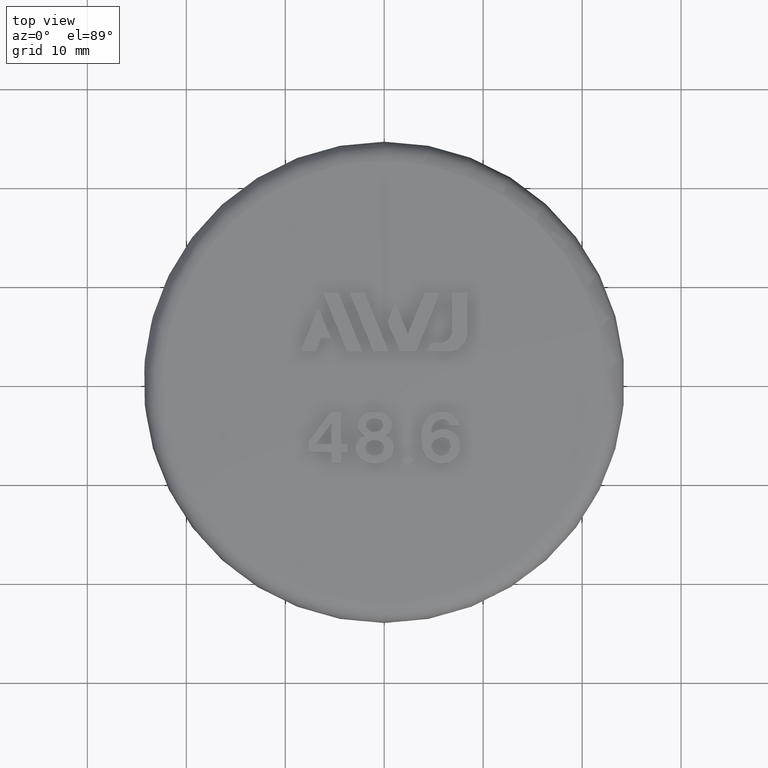
[diagram: clean part render]
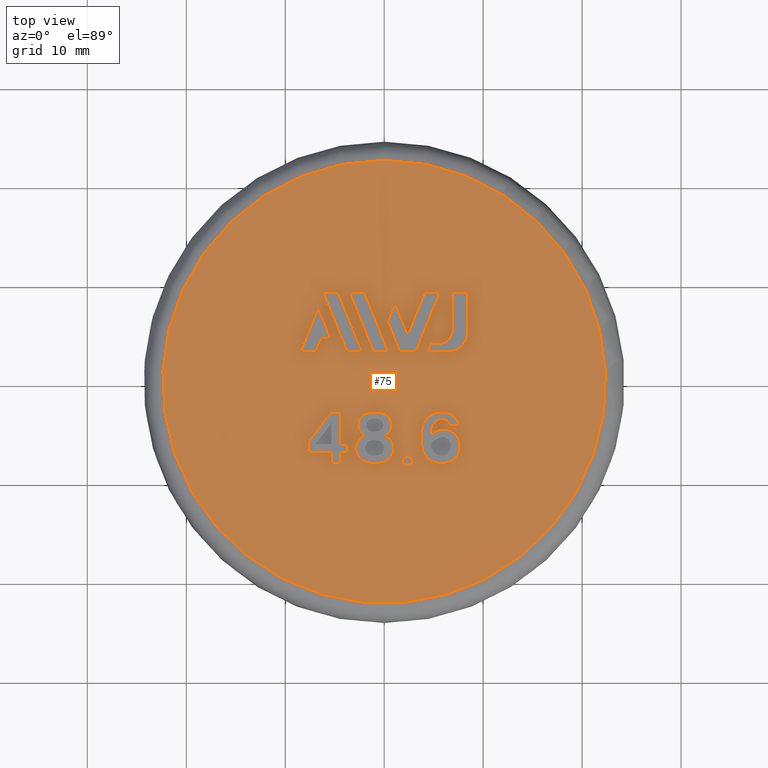
[diagram: same view with one face highlighted and labeled with its STEP entity id]
A machine part, top view. The second image highlights one B-rep face of the part: STEP entity #75.
In plain terms, the highlighted face is a freeform B-spline surface patch.
Its self-contained STEP definition (entity closure, byte-faithful):
#75 = ADVANCED_FACE( '', ( #213, #214, #215, #216, #217, #218, #219, #220, #221, #222, #223 ), #224, .T. );
#213 = FACE_BOUND( '', #524, .T. );
#214 = FACE_BOUND( '', #525, .T. );
#215 = FACE_BOUND( '', #526, .T. );
#216 = FACE_BOUND( '', #527, .T. );
#217 = FACE_BOUND( '', #528, .T. );
#218 = FACE_OUTER_BOUND( '', #529, .T. );
#219 = FACE_BOUND( '', #530, .T. );
#220 = FACE_BOUND( '', #531, .T. );
#221 = FACE_BOUND( '', #532, .T. );
#222 = FACE_BOUND( '', #533, .T. );
#223 = FACE_BOUND( '', #534, .T. );
#224 = ( B_SPLINE_SURFACE( 3, 3, ( ( #536, #537, #538, #539, #540, #541, #542 ), ( #543, #544, #545, #546, #547, #548, #549 ), ( #550, #551, #552, #553, #554, #555, #556 ), ( #557, #558, #559, #560, #561, #562, #563 ) ), .UNSPECIFIED., .F., .T., .F. )B_SPLINE_SURFACE_WITH_KNOTS( ( 4, 4 ), ( 4, 3, 4 ), ( 0.000000000000000, 6.28318530717959 ), ( -1.57232048147547, -1.55197153793293, -1.53162259439039 ), .UNSPECIFIED. )RATIONAL_B_SPLINE_SURFACE( ( ( 1.00000000000000, 0.333333333333333, 0.333333333333333, 1.00000000000000, 0.333333333333333, 0.333333333333333, 1.00000000000000 ), ( 0.999861978261664, 0.333287326087221, 0.333287326087221, 0.999861978261664, 0.333287326087221, 0.333287326087221, 0.999861978261664 ), ( 0.999861978261664, 0.333287326087221, 0.333287326087221, 0.999861978261664, 0.333287326087221, 0.333287326087221, 0.999861978261664 ), ( 1.00000000000000, 0.333333333333333, 0.333333333333333, 1.00000000000000, 0.333333333333333, 0.333333333333333, 1.00000000000000 ) ) )BOUNDED_SURFACE(  )REPRESENTATION_ITEM( '' )GEOMETRIC_REPRESENTATION_ITEM(  )SURFACE(  ) );
#524 = EDGE_LOOP( '', ( #1165, #1166, #1167 ) );
#525 = EDGE_LOOP( '', ( #1168, #1169 ) );
#526 = EDGE_LOOP( '', ( #1170, #1171, #1172, #1173, #1174 ) );
#527 = EDGE_LOOP( '', ( #1175, #1176, #1177, #1178 ) );
#528 = EDGE_LOOP( '', ( #1179, #1180, #1181, #1182, #1183, #1184, #1185, #1186 ) );
#529 = EDGE_LOOP( '', ( #1187 ) );
#530 = VERTEX_LOOP( '', #1188 );
#531 = EDGE_LOOP( '', ( #1189, #1190, #1191, #1192, #1193, #1194, #1195 ) );
#532 = EDGE_LOOP( '', ( #1196, #1197, #1198, #1199 ) );
#533 = EDGE_LOOP( '', ( #1200, #1201, #1202, #1203 ) );
#534 = EDGE_LOOP( '', ( #1204, #1205, #1206, #1207, #1208, #1209, #1210, #1211, #1212, #1213, #1214 ) );
#536 = CARTESIAN_POINT( '', ( 0.000000000000000, 22.3783274279206, 26.5786829421588 ) );
#537 = CARTESIAN_POINT( '', ( 44.7566548558411, 22.3783274279206, 26.5786829421588 ) );
#538 = CARTESIAN_POINT( '', ( 44.7566548558411, -22.3783274279206, 26.5786829421588 ) );
#539 = CARTESIAN_POINT( '', ( 0.000000000000000, -22.3783274279206, 26.5786829421588 ) );
#540 = CARTESIAN_POINT( '', ( -44.7566548558411, -22.3783274279206, 26.5786829421588 ) );
#541 = CARTESIAN_POINT( '', ( -44.7566548558411, 22.3783274279206, 26.5786829421588 ) );
#542 = CARTESIAN_POINT( '', ( 0.000000000000000, 22.3783274279206, 26.5786829421588 ) );
#543 = CARTESIAN_POINT( '', ( 0.000000000000000, 14.9222577885340, 26.8709145186687 ) );
#544 = CARTESIAN_POINT( '', ( 29.8445155770681, 14.9222577885340, 26.8709145186687 ) );
#545 = CARTESIAN_POINT( '', ( 29.8445155770681, -14.9222577885340, 26.8709145186687 ) );
#546 = CARTESIAN_POINT( '', ( 0.000000000000000, -14.9222577885340, 26.8709145186687 ) );
#547 = CARTESIAN_POINT( '', ( -29.8445155770681, -14.9222577885340, 26.8709145186687 ) );
#548 = CARTESIAN_POINT( '', ( -29.8445155770681, 14.9222577885340, 26.8709145186687 ) );
#549 = CARTESIAN_POINT( '', ( 0.000000000000000, 14.9222577885340, 26.8709145186687 ) );
#550 = CARTESIAN_POINT( '', ( 0.000000000000000, 7.46178560522077, 27.0113729242624 ) );
#551 = CARTESIAN_POINT( '', ( 14.9235712104416, 7.46178560522078, 27.0113729242624 ) );
#552 = CARTESIAN_POINT( '', ( 14.9235712104415, -7.46178560522077, 27.0113729242624 ) );
#553 = CARTESIAN_POINT( '', ( 0.000000000000000, -7.46178560522077, 27.0113729242624 ) );
#554 = CARTESIAN_POINT( '', ( -14.9235712104415, -7.46178560522077, 27.0113729242624 ) );
#555 = CARTESIAN_POINT( '', ( -14.9235712104416, 7.46178560522078, 27.0113729242624 ) );
#556 = CARTESIAN_POINT( '', ( 0.000000000000000, 7.46178560522077, 27.0113729242624 ) );
#557 = CARTESIAN_POINT( '', ( 0.000000000000000, -3.07804996768635E-013, 27.0000000000001 ) );
#558 = CARTESIAN_POINT( '', ( -6.16222296714181E-013, -3.07804996768635E-013, 27.0000000000001 ) );
#559 = CARTESIAN_POINT( '', ( -6.16222296714181E-013, 3.08417299945546E-013, 27.0000000000001 ) );
#560 = CARTESIAN_POINT( '', ( 0.000000000000000, 3.08417299945546E-013, 27.0000000000001 ) );
#561 = CARTESIAN_POINT( '', ( 6.16222296714181E-013, 3.08417299945546E-013, 27.0000000000001 ) );
#562 = CARTESIAN_POINT( '', ( 6.16222296714181E-013, -3.07804996768635E-013, 27.0000000000001 ) );
#563 = CARTESIAN_POINT( '', ( 0.000000000000000, -3.07804996768635E-013, 27.0000000000001 ) );
#1165 = ORIENTED_EDGE( '', *, *, #2273, .F. );
#1166 = ORIENTED_EDGE( '', *, *, #2274, .F. );
#1167 = ORIENTED_EDGE( '', *, *, #2275, .F. );
#1168 = ORIENTED_EDGE( '', *, *, #2276, .T. );
#1169 = ORIENTED_EDGE( '', *, *, #2277, .T. );
#1170 = ORIENTED_EDGE( '', *, *, #2278, .F. );
#1171 = ORIENTED_EDGE( '', *, *, #2279, .F. );
#1172 = ORIENTED_EDGE( '', *, *, #2280, .F. );
#1173 = ORIENTED_EDGE( '', *, *, #2281, .F. );
#1174 = ORIENTED_EDGE( '', *, *, #2282, .F. );
#1175 = ORIENTED_EDGE( '', *, *, #2283, .F. );
#1176 = ORIENTED_EDGE( '', *, *, #2284, .F. );
#1177 = ORIENTED_EDGE( '', *, *, #2285, .F. );
#1178 = ORIENTED_EDGE( '', *, *, #2286, .F. );
#1179 = ORIENTED_EDGE( '', *, *, #2287, .F. );
#1180 = ORIENTED_EDGE( '', *, *, #2288, .F. );
#1181 = ORIENTED_EDGE( '', *, *, #2289, .F. );
#1182 = ORIENTED_EDGE( '', *, *, #2290, .F. );
#1183 = ORIENTED_EDGE( '', *, *, #2291, .F. );
#1184 = ORIENTED_EDGE( '', *, *, #2292, .F. );
#1185 = ORIENTED_EDGE( '', *, *, #2293, .F. );
#1186 = ORIENTED_EDGE( '', *, *, #2294, .F. );
#1187 = ORIENTED_EDGE( '', *, *, #2295, .F. );
#1188 = VERTEX_POINT( '', #2296 );
#1189 = ORIENTED_EDGE( '', *, *, #2297, .F. );
#1190 = ORIENTED_EDGE( '', *, *, #2298, .F. );
#1191 = ORIENTED_EDGE( '', *, *, #2299, .F. );
#1192 = ORIENTED_EDGE( '', *, *, #2300, .F. );
#1193 = ORIENTED_EDGE( '', *, *, #2301, .F. );
#1194 = ORIENTED_EDGE( '', *, *, #2302, .F. );
#1195 = ORIENTED_EDGE( '', *, *, #2303, .F. );
#1196 = ORIENTED_EDGE( '', *, *, #2304, .F. );
#1197 = ORIENTED_EDGE( '', *, *, #2305, .F. );
#1198 = ORIENTED_EDGE( '', *, *, #2306, .F. );
#1199 = ORIENTED_EDGE( '', *, *, #2307, .F. );
#1200 = ORIENTED_EDGE( '', *, *, #2308, .F. );
#1201 = ORIENTED_EDGE( '', *, *, #2309, .F. );
#1202 = ORIENTED_EDGE( '', *, *, #2310, .F. );
#1203 = ORIENTED_EDGE( '', *, *, #2311, .F. );
#1204 = ORIENTED_EDGE( '', *, *, #2312, .F. );
#1205 = ORIENTED_EDGE( '', *, *, #2313, .F. );
#1206 = ORIENTED_EDGE( '', *, *, #2314, .F. );
#1207 = ORIENTED_EDGE( '', *, *, #2315, .F. );
#1208 = ORIENTED_EDGE( '', *, *, #2316, .F. );
#1209 = ORIENTED_EDGE( '', *, *, #2317, .F. );
#1210 = ORIENTED_EDGE( '', *, *, #2318, .F. );
#1211 = ORIENTED_EDGE( '', *, *, #2319, .F. );
#1212 = ORIENTED_EDGE( '', *, *, #2320, .F. );
#1213 = ORIENTED_EDGE( '', *, *, #2321, .F. );
#1214 = ORIENTED_EDGE( '', *, *, #2322, .F. );
#2273 = EDGE_CURVE( '', #2595, #2596, #2597, .T. );
#2274 = EDGE_CURVE( '', #2598, #2595, #2599, .T. );
#2275 = EDGE_CURVE( '', #2596, #2598, #2600, .T. );
#2276 = EDGE_CURVE( '', #2601, #2602, #2603, .T. );
#2277 = EDGE_CURVE( '', #2602, #2601, #2604, .T. );
#2278 = EDGE_CURVE( '', #2605, #2606, #2607, .T. );
#2279 = EDGE_CURVE( '', #2608, #2605, #2609, .T. );
#2280 = EDGE_CURVE( '', #2610, #2608, #2611, .T. );
#2281 = EDGE_CURVE( '', #2612, #2610, #2613, .T. );
#2282 = EDGE_CURVE( '', #2606, #2612, #2614, .T. );
#2283 = EDGE_CURVE( '', #2615, #2616, #2617, .T. );
#2284 = EDGE_CURVE( '', #2618, #2615, #2619, .T. );
#2285 = EDGE_CURVE( '', #2620, #2618, #2621, .T. );
#2286 = EDGE_CURVE( '', #2616, #2620, #2622, .T. );
#2287 = EDGE_CURVE( '', #2623, #2624, #2625, .T. );
#2288 = EDGE_CURVE( '', #2626, #2623, #2627, .T. );
#2289 = EDGE_CURVE( '', #2628, #2626, #2629, .T. );
#2290 = EDGE_CURVE( '', #2630, #2628, #2631, .T. );
#2291 = EDGE_CURVE( '', #2632, #2630, #2633, .T. );
#2292 = EDGE_CURVE( '', #2634, #2632, #2635, .T. );
#2293 = EDGE_CURVE( '', #2636, #2634, #2637, .T. );
#2294 = EDGE_CURVE( '', #2624, #2636, #2638, .T. );
#2295 = EDGE_CURVE( '', #2639, #2639, #2640, .T. );
#2296 = CARTESIAN_POINT( '', ( 3.25260651745651E-016, 3.06151588455602E-016, 27.0000000000001 ) );
#2297 = EDGE_CURVE( '', #2641, #2642, #2643, .T. );
#2298 = EDGE_CURVE( '', #2644, #2641, #2645, .T. );
#2299 = EDGE_CURVE( '', #2646, #2644, #2647, .T. );
#2300 = EDGE_CURVE( '', #2648, #2646, #2649, .T. );
#2301 = EDGE_CURVE( '', #2650, #2648, #2651, .T. );
#2302 = EDGE_CURVE( '', #2652, #2650, #2653, .T. );
#2303 = EDGE_CURVE( '', #2642, #2652, #2654, .T. );
#2304 = EDGE_CURVE( '', #2655, #2656, #2657, .T. );
#2305 = EDGE_CURVE( '', #2658, #2655, #2659, .T. );
#2306 = EDGE_CURVE( '', #2660, #2658, #2661, .T. );
#2307 = EDGE_CURVE( '', #2656, #2660, #2662, .T. );
#2308 = EDGE_CURVE( '', #2663, #2664, #2665, .T. );
#2309 = EDGE_CURVE( '', #2666, #2663, #2667, .T. );
#2310 = EDGE_CURVE( '', #2668, #2666, #2669, .T. );
#2311 = EDGE_CURVE( '', #2664, #2668, #2670, .T. );
#2312 = EDGE_CURVE( '', #2671, #2672, #2673, .T. );
#2313 = EDGE_CURVE( '', #2674, #2671, #2675, .T. );
#2314 = EDGE_CURVE( '', #2676, #2674, #2677, .T. );
#2315 = EDGE_CURVE( '', #2678, #2676, #2679, .T. );
#2316 = EDGE_CURVE( '', #2680, #2678, #2681, .T. );
#2317 = EDGE_CURVE( '', #2682, #2680, #2683, .T. );
#2318 = EDGE_CURVE( '', #2684, #2682, #2685, .T. );
#2319 = EDGE_CURVE( '', #2686, #2684, #2687, .T. );
#2320 = EDGE_CURVE( '', #2688, #2686, #2689, .T. );
#2321 = EDGE_CURVE( '', #2690, #2688, #2691, .T. );
#2322 = EDGE_CURVE( '', #2672, #2690, #2692, .T. );
#2595 = VERTEX_POINT( '', #3138 );
#2596 = VERTEX_POINT( '', #3139 );
#2597 = B_SPLINE_CURVE_WITH_KNOTS( '', 3, ( #3140, #3141, #3142, #3143, #3144, #3145, #3146, #3147 ), .UNSPECIFIED., .F., .F., ( 4, 2, 2, 4 ), ( 2.07181657327061E-007, 0.000253222256020334, 0.000506237330383341, 0.00101226747910936 ), .UNSPECIFIED. );
#2598 = VERTEX_POINT( '', #3148 );
#2599 = B_SPLINE_CURVE_WITH_KNOTS( '', 3, ( #3149, #3150, #3151, #3152, #3153, #3154, #3155, #3156, #3157, #3158, #3159, #3160, #3161, #3162, #3163, #3164, #3165, #3166, #3167, #3168, #3169, #3170, #3171, #3172, #3173, #3174, #3175, #3176, #3177, #3178, #3179, #3180, #3181, #3182, #3183, #3184, #3185, #3186, #3187, #3188, #3189, #3190, #3191, #3192 ), .UNSPECIFIED., .F., .F., ( 4, 2, 2, 2, 2, 2, 2, 2, 2, 2, 2, 2, 2, 2, 2, 2, 2, 2, 2, 2, 2, 4 ), ( 0.000000000000000, 0.000469921312048744, 0.000704881968073116, 0.000939842624097487, 0.00140976393614623, 0.00187968524819497, 0.00234960656024372, 0.00258456721626809, 0.00281952787229246, 0.00328944918434120, 0.00375937049638995, 0.00422929180843869, 0.00469921312048743, 0.00493417377651180, 0.00516913443253618, 0.00563905574458492, 0.00587401640060929, 0.00610897705663366, 0.00657889836868240, 0.00681385902470678, 0.00704881968073115, 0.00751874099277989 ), .UNSPECIFIED. );
#2600 = B_SPLINE_CURVE_WITH_KNOTS( '', 3, ( #3193, #3194, #3195, #3196, #3197, #3198, #3199, #3200, #3201, #3202, #3203, #3204, #3205, #3206, #3207, #3208, #3209, #3210, #3211, #3212, #3213, #3214, #3215, #3216, #3217, #3218, #3219, #3220, #3221, #3222, #3223, #3224, #3225, #3226, #3227, #3228, #3229, #3230 ), .UNSPECIFIED., .F., .F., ( 4, 2, 2, 2, 2, 2, 2, 2, 2, 2, 2, 2, 2, 2, 2, 2, 2, 2, 4 ), ( 0.000000000000000, 0.000483639529254431, 0.000967279058508862, 0.00145091858776329, 0.00193455811701772, 0.00241819764627216, 0.00290183717552659, 0.00338547670478102, 0.00386911623403545, 0.00435275576328988, 0.00483639529254431, 0.00507821505717152, 0.00532003482179874, 0.00580367435105316, 0.00628731388030759, 0.00677095340956201, 0.00701277317418922, 0.00725459293881644, 0.00773823246807086 ), .UNSPECIFIED. );
#2601 = VERTEX_POINT( '', #3231 );
#2602 = VERTEX_POINT( '', #3232 );
#2603 = B_SPLINE_CURVE_WITH_KNOTS( '', 3, ( #3233, #3234, #3235, #3236, #3237, #3238, #3239, #3240, #3241, #3242, #3243, #3244, #3245, #3246 ), .UNSPECIFIED., .F., .F., ( 4, 2, 2, 2, 2, 2, 4 ), ( 0.000000000000000, 0.000384540673760482, 0.000576811010640725, 0.000769081347520968, 0.000961351684401211, 0.00115362202128145, 0.00153816269504194 ), .UNSPECIFIED. );
#2604 = B_SPLINE_CURVE_WITH_KNOTS( '', 3, ( #3247, #3248, #3249, #3250, #3251, #3252, #3253, #3254, #3255, #3256, #3257, #3258, #3259, #3260 ), .UNSPECIFIED., .F., .F., ( 4, 2, 2, 2, 2, 2, 4 ), ( 0.000000000000000, 0.000384540841428157, 0.000576811262142236, 0.000769081682856314, 0.000961352103570393, 0.00115362252428447, 0.00153816336571263 ), .UNSPECIFIED. );
#2605 = VERTEX_POINT( '', #3261 );
#2606 = VERTEX_POINT( '', #3262 );
#2607 = B_SPLINE_CURVE_WITH_KNOTS( '', 3, ( #3263, #3264, #3265, #3266 ), .UNSPECIFIED., .F., .F., ( 4, 4 ), ( 2.15707224095742E-007, 0.00485097116852450 ), .UNSPECIFIED. );
#2608 = VERTEX_POINT( '', #3267 );
#2609 = B_SPLINE_CURVE_WITH_KNOTS( '', 3, ( #3268, #3269, #3270, #3271 ), .UNSPECIFIED., .F., .F., ( 4, 4 ), ( 2.15702240297657E-007, 0.00335683113711189 ), .UNSPECIFIED. );
#2610 = VERTEX_POINT( '', #3272 );
#2611 = B_SPLINE_CURVE_WITH_KNOTS( '', 3, ( #3273, #3274, #3275, #3276, #3277, #3278 ), .UNSPECIFIED., .F., .F., ( 4, 2, 4 ), ( 3.48924730777917, 3.48972925685257, 3.49021120592596 ), .UNSPECIFIED. );
#2612 = VERTEX_POINT( '', #3279 );
#2613 = B_SPLINE_CURVE_WITH_KNOTS( '', 3, ( #3280, #3281, #3282, #3283 ), .UNSPECIFIED., .F., .F., ( 4, 4 ), ( 2.15728885515555E-007, 0.00149462531016601 ), .UNSPECIFIED. );
#2614 = B_SPLINE_CURVE_WITH_KNOTS( '', 3, ( #3284, #3285, #3286, #3287, #3288, #3289 ), .UNSPECIFIED., .F., .F., ( 4, 2, 4 ), ( 3.48885935095678, 3.48963416434721, 3.49040897773765 ), .UNSPECIFIED. );
#2615 = VERTEX_POINT( '', #3290 );
#2616 = VERTEX_POINT( '', #3291 );
#2617 = B_SPLINE_CURVE_WITH_KNOTS( '', 3, ( #3292, #3293, #3294, #3295, #3296, #3297 ), .UNSPECIFIED., .F., .F., ( 4, 2, 4 ), ( 3.49021840634605, 3.49099348193459, 3.49176855752312 ), .UNSPECIFIED. );
#2618 = VERTEX_POINT( '', #3298 );
#2619 = B_SPLINE_CURVE_WITH_KNOTS( '', 3, ( #3299, #3300, #3301, #3302 ), .UNSPECIFIED., .F., .F., ( 4, 4 ), ( 2.15734235500972E-007, 0.00647035431853798 ), .UNSPECIFIED. );
#2620 = VERTEX_POINT( '', #3303 );
#2621 = B_SPLINE_CURVE_WITH_KNOTS( '', 3, ( #3304, #3305, #3306, #3307, #3308, #3309 ), .UNSPECIFIED., .F., .F., ( 4, 2, 4 ), ( 3.48757906835301, 3.48835408982577, 3.48912911129853 ), .UNSPECIFIED. );
#2622 = B_SPLINE_CURVE_WITH_KNOTS( '', 3, ( #3310, #3311, #3312, #3313 ), .UNSPECIFIED., .F., .F., ( 4, 4 ), ( 2.15710700075739E-007, 0.00647032361413973 ), .UNSPECIFIED. );
#2623 = VERTEX_POINT( '', #3314 );
#2624 = VERTEX_POINT( '', #3315 );
#2625 = B_SPLINE_CURVE_WITH_KNOTS( '', 3, ( #3316, #3317, #3318, #3319 ), .UNSPECIFIED., .F., .F., ( 4, 4 ), ( 2.15714484725743E-007, 0.000941060443650760 ), .UNSPECIFIED. );
#2626 = VERTEX_POINT( '', #3320 );
#2627 = B_SPLINE_CURVE_WITH_KNOTS( '', 3, ( #3321, #3322, #3323, #3324, #3325, #3326 ), .UNSPECIFIED., .F., .F., ( 4, 2, 4 ), ( 3.48941293045993, 3.48983894883303, 3.49026496720613 ), .UNSPECIFIED. );
#2628 = VERTEX_POINT( '', #3327 );
#2629 = B_SPLINE_CURVE_WITH_KNOTS( '', 3, ( #3328, #3329, #3330, #3331, #3332, #3333, #3334, #3335, #3336, #3337, #3338, #3339, #3340, #3341 ), .UNSPECIFIED., .F., .F., ( 4, 2, 2, 2, 2, 2, 4 ), ( 7.47037518297715E-005, 0.000335499492294978, 0.000596295232760185, 0.00111788671369060, 0.00163947819462101, 0.00190027393508622, 0.00216106967555143 ), .UNSPECIFIED. );
#2630 = VERTEX_POINT( '', #3342 );
#2631 = B_SPLINE_CURVE_WITH_KNOTS( '', 3, ( #3343, #3344, #3345, #3346, #3347, #3348 ), .UNSPECIFIED., .F., .F., ( 4, 2, 4 ), ( 3.48742462885483, 3.48932076488217, 3.49121690090951 ), .UNSPECIFIED. );
#2632 = VERTEX_POINT( '', #3349 );
#2633 = B_SPLINE_CURVE_WITH_KNOTS( '', 3, ( #3350, #3351, #3352, #3353, #3354, #3355 ), .UNSPECIFIED., .F., .F., ( 4, 2, 4 ), ( 3.49020368559472, 3.49098756105408, 3.49177143651345 ), .UNSPECIFIED. );
#2634 = VERTEX_POINT( '', #3356 );
#2635 = B_SPLINE_CURVE_WITH_KNOTS( '', 3, ( #3357, #3358, #3359, #3360, #3361, #3362 ), .UNSPECIFIED., .F., .F., ( 4, 2, 4 ), ( 3.48897371536219, 3.49097263290113, 3.49297155044007 ), .UNSPECIFIED. );
#2636 = VERTEX_POINT( '', #3363 );
#2637 = B_SPLINE_CURVE_WITH_KNOTS( '', 3, ( #3364, #3365, #3366, #3367, #3368, #3369, #3370, #3371, #3372, #3373, #3374, #3375, #3376, #3377 ), .UNSPECIFIED., .F., .F., ( 4, 2, 2, 2, 2, 2, 4 ), ( 0.000111963335148921, 0.000503160286832201, 0.000894357238515482, 0.00167675114188204, 0.00245914504524860, 0.00285034199693188, 0.00324153894861517 ), .UNSPECIFIED. );
#2638 = B_SPLINE_CURVE_WITH_KNOTS( '', 3, ( #3378, #3379, #3380, #3381, #3382, #3383 ), .UNSPECIFIED., .F., .F., ( 4, 2, 4 ), ( 3.48877582250319, 3.48982841434286, 3.49088100618253 ), .UNSPECIFIED. );
#2639 = VERTEX_POINT( '', #3384 );
#2640 = CIRCLE( '', #3385, 22.3783274279206 );
#2641 = VERTEX_POINT( '', #3386 );
#2642 = VERTEX_POINT( '', #3387 );
#2643 = B_SPLINE_CURVE_WITH_KNOTS( '', 3, ( #3388, #3389, #3390, #3391, #3392, #3393 ), .UNSPECIFIED., .F., .F., ( 4, 2, 4 ), ( 3.48930311435226, 3.49012245893948, 3.49094180352669 ), .UNSPECIFIED. );
#2644 = VERTEX_POINT( '', #3394 );
#2645 = B_SPLINE_CURVE_WITH_KNOTS( '', 3, ( #3395, #3396, #3397, #3398 ), .UNSPECIFIED., .F., .F., ( 4, 4 ), ( 2.15719344025709E-007, 0.00329648473570306 ), .UNSPECIFIED. );
#2646 = VERTEX_POINT( '', #3399 );
#2647 = B_SPLINE_CURVE_WITH_KNOTS( '', 3, ( #3400, #3401, #3402, #3403 ), .UNSPECIFIED., .F., .F., ( 4, 4 ), ( 2.15718751737160E-007, 0.00206962200371408 ), .UNSPECIFIED. );
#2648 = VERTEX_POINT( '', #3404 );
#2649 = B_SPLINE_CURVE_WITH_KNOTS( '', 3, ( #3405, #3406, #3407, #3408 ), .UNSPECIFIED., .F., .F., ( 4, 4 ), ( 2.15710646262840E-007, 0.00341457824004196 ), .UNSPECIFIED. );
#2650 = VERTEX_POINT( '', #3409 );
#2651 = B_SPLINE_CURVE_WITH_KNOTS( '', 3, ( #3410, #3411, #3412, #3413 ), .UNSPECIFIED., .F., .F., ( 4, 4 ), ( 2.15737808763589E-007, 0.00451909213445147 ), .UNSPECIFIED. );
#2652 = VERTEX_POINT( '', #3414 );
#2653 = B_SPLINE_CURVE_WITH_KNOTS( '', 3, ( #3415, #3416, #3417, #3418, #3419, #3420 ), .UNSPECIFIED., .F., .F., ( 4, 2, 4 ), ( 3.48857184489822, 3.48934683865274, 3.49012183240725 ), .UNSPECIFIED. );
#2654 = B_SPLINE_CURVE_WITH_KNOTS( '', 3, ( #3421, #3422, #3423, #3424 ), .UNSPECIFIED., .F., .F., ( 4, 4 ), ( 2.15707486427350E-007, 0.00647032904258706 ), .UNSPECIFIED. );
#2655 = VERTEX_POINT( '', #3425 );
#2656 = VERTEX_POINT( '', #3426 );
#2657 = B_SPLINE_CURVE_WITH_KNOTS( '', 3, ( #3427, #3428, #3429, #3430, #3431, #3432 ), .UNSPECIFIED., .F., .F., ( 4, 2, 4 ), ( 3.48921481809669, 3.48998983395548, 3.49076484981427 ), .UNSPECIFIED. );
#2658 = VERTEX_POINT( '', #3433 );
#2659 = B_SPLINE_CURVE_WITH_KNOTS( '', 3, ( #3434, #3435, #3436, #3437 ), .UNSPECIFIED., .F., .F., ( 4, 4 ), ( 2.15736830842373E-007, 0.00647036363177008 ), .UNSPECIFIED. );
#2660 = VERTEX_POINT( '', #3438 );
#2661 = B_SPLINE_CURVE_WITH_KNOTS( '', 3, ( #3439, #3440, #3441, #3442, #3443, #3444 ), .UNSPECIFIED., .F., .F., ( 4, 2, 4 ), ( 3.48801095695795, 3.48878578065105, 3.48956060434415 ), .UNSPECIFIED. );
#2662 = B_SPLINE_CURVE_WITH_KNOTS( '', 3, ( #3445, #3446, #3447, #3448 ), .UNSPECIFIED., .F., .F., ( 4, 4 ), ( 2.15711758507845E-007, 0.00647042740387109 ), .UNSPECIFIED. );
#2663 = VERTEX_POINT( '', #3449 );
#2664 = VERTEX_POINT( '', #3450 );
#2665 = B_SPLINE_CURVE_WITH_KNOTS( '', 3, ( #3451, #3452, #3453, #3454, #3455, #3456, #3457, #3458 ), .UNSPECIFIED., .F., .F., ( 4, 2, 2, 4 ), ( 1.99672169592652E-007, 0.000322304346920244, 0.000644409021670895, 0.00128861837117220 ), .UNSPECIFIED. );
#2666 = VERTEX_POINT( '', #3459 );
#2667 = B_SPLINE_CURVE_WITH_KNOTS( '', 3, ( #3460, #3461, #3462, #3463 ), .UNSPECIFIED., .F., .F., ( 4, 4 ), ( 2.00011514801445E-007, 0.000960264971362403 ), .UNSPECIFIED. );
#2668 = VERTEX_POINT( '', #3464 );
#2669 = B_SPLINE_CURVE_WITH_KNOTS( '', 3, ( #3465, #3466, #3467, #3468, #3469, #3470, #3471, #3472, #3473, #3474, #3475, #3476, #3477, #3478, #3479, #3480, #3481, #3482, #3483, #3484 ), .UNSPECIFIED., .F., .F., ( 4, 2, 2, 2, 2, 2, 2, 2, 2, 4 ), ( 0.000000000000000, 0.000383167815667169, 0.000766335631334338, 0.000957919539167923, 0.00114950344700151, 0.00153267126266868, 0.00191583907833585, 0.00229900689400302, 0.00268217470967019, 0.00306534252533736 ), .UNSPECIFIED. );
#2670 = B_SPLINE_CURVE_WITH_KNOTS( '', 3, ( #3485, #3486, #3487, #3488, #3489, #3490, #3491, #3492, #3493, #3494, #3495, #3496, #3497, #3498, #3499, #3500, #3501, #3502, #3503, #3504, #3505, #3506, #3507, #3508, #3509, #3510, #3511, #3512, #3513, #3514, #3515, #3516, #3517, #3518, #3519, #3520, #3521, #3522, #3523, #3524, #3525, #3526, #3527, #3528, #3529, #3530, #3531, #3532, #3533, #3534, #3535, #3536, #3537, #3538, #3539, #3540, #3541, #3542, #3543, #3544 ), .UNSPECIFIED., .F., .F., ( 4, 2, 2, 2, 2, 2, 2, 2, 2, 2, 2, 2, 2, 2, 2, 2, 2, 2, 2, 2, 2, 2, 2, 2, 2, 2, 2, 2, 2, 4 ), ( 0.000000000000000, 0.000485381128479845, 0.000970762256959691, 0.00145614338543954, 0.00194152451391938, 0.00242690564239923, 0.00291228677087907, 0.00339766789935892, 0.00388304902783876, 0.00485381128479845, 0.00582457354175814, 0.00630995467023799, 0.00679533579871783, 0.00728071692719768, 0.00776609805567752, 0.00873686031263721, 0.00922224144111706, 0.00970762256959690, 0.0101930036980767, 0.0106783848265566, 0.0111637659550364, 0.0116491470835163, 0.0121345282119961, 0.0126199093404760, 0.0131052904689558, 0.0133479810331957, 0.0135906715974357, 0.0140760527259155, 0.0145614338543953, 0.0155321961113550 ), .UNSPECIFIED. );
#2671 = VERTEX_POINT( '', #3545 );
#2672 = VERTEX_POINT( '', #3546 );
#2673 = B_SPLINE_CURVE_WITH_KNOTS( '', 3, ( #3547, #3548, #3549, #3550, #3551, #3552 ), .UNSPECIFIED., .F., .F., ( 4, 2, 4 ), ( 3.48802634203030, 3.48850633175481, 3.48898632147931 ), .UNSPECIFIED. );
#2674 = VERTEX_POINT( '', #3553 );
#2675 = B_SPLINE_CURVE_WITH_KNOTS( '', 3, ( #3554, #3555, #3556, #3557, #3558, #3559 ), .UNSPECIFIED., .F., .F., ( 4, 2, 4 ), ( 3.48862687632254, 3.48918937647819, 3.48975187663383 ), .UNSPECIFIED. );
#2676 = VERTEX_POINT( '', #3560 );
#2677 = B_SPLINE_CURVE_WITH_KNOTS( '', 3, ( #3561, #3562, #3563, #3564, #3565, #3566 ), .UNSPECIFIED., .F., .F., ( 4, 2, 4 ), ( 3.48804955010725, 3.48920451977289, 3.49035948943853 ), .UNSPECIFIED. );
#2678 = VERTEX_POINT( '', #3567 );
#2679 = B_SPLINE_CURVE_WITH_KNOTS( '', 3, ( #3568, #3569, #3570, #3571, #3572, #3573 ), .UNSPECIFIED., .F., .F., ( 4, 2, 4 ), ( 3.48865077186893, 3.48918825170166, 3.48972573153440 ), .UNSPECIFIED. );
#2680 = VERTEX_POINT( '', #3574 );
#2681 = B_SPLINE_CURVE_WITH_KNOTS( '', 3, ( #3575, #3576, #3577, #3578 ), .UNSPECIFIED., .F., .F., ( 4, 4 ), ( 2.51542579329114E-007, 0.00371065767356432 ), .UNSPECIFIED. );
#2682 = VERTEX_POINT( '', #3579 );
#2683 = B_SPLINE_CURVE_WITH_KNOTS( '', 3, ( #3580, #3581, #3582, #3583, #3584, #3585 ), .UNSPECIFIED., .F., .F., ( 4, 2, 4 ), ( 3.48937847907777, 3.48988848059067, 3.49039848210357 ), .UNSPECIFIED. );
#2684 = VERTEX_POINT( '', #3586 );
#2685 = B_SPLINE_CURVE_WITH_KNOTS( '', 3, ( #3587, #3588, #3589, #3590, #3591, #3592 ), .UNSPECIFIED., .F., .F., ( 4, 2, 4 ), ( 3.48819542544959, 3.48980792544660, 3.49142042544361 ), .UNSPECIFIED. );
#2686 = VERTEX_POINT( '', #3593 );
#2687 = B_SPLINE_CURVE_WITH_KNOTS( '', 3, ( #3594, #3595, #3596, #3597, #3598, #3599 ), .UNSPECIFIED., .F., .F., ( 4, 2, 4 ), ( 3.48880921787067, 3.48915421318325, 3.48949920849583 ), .UNSPECIFIED. );
#2688 = VERTEX_POINT( '', #3600 );
#2689 = B_SPLINE_CURVE_WITH_KNOTS( '', 3, ( #3601, #3602, #3603, #3604, #3605, #3606 ), .UNSPECIFIED., .F., .F., ( 4, 2, 4 ), ( 3.48920441805609, 3.48960440926416, 3.49000440047222 ), .UNSPECIFIED. );
#2690 = VERTEX_POINT( '', #3607 );
#2691 = B_SPLINE_CURVE_WITH_KNOTS( '', 3, ( #3608, #3609, #3610, #3611, #3612, #3613 ), .UNSPECIFIED., .F., .F., ( 4, 2, 4 ), ( 3.48920285115470, 3.48954782935396, 3.48989280755321 ), .UNSPECIFIED. );
#2692 = B_SPLINE_CURVE_WITH_KNOTS( '', 3, ( #3614, #3615, #3616, #3617, #3618, #3619 ), .UNSPECIFIED., .F., .F., ( 4, 2, 4 ), ( 3.48922023890814, 3.48978272302238, 3.49034520713662 ), .UNSPECIFIED. );
#3138 = CARTESIAN_POINT( '', ( -1.99499942125367, -5.48474757722454, 26.9779290729095 ) );
#3139 = CARTESIAN_POINT( '', ( -2.74004626786406, -6.13718598267806, 26.9691767832430 ) );
#3140 = CARTESIAN_POINT( '', ( -1.99499942125367, -5.48474757722454, 26.9779290729096 ) );
#3141 = CARTESIAN_POINT( '', ( -2.07641093946223, -5.51103036932661, 26.9774517134462 ) );
#3142 = CARTESIAN_POINT( '', ( -2.15374851891121, -5.54512222948609, 26.9769023260141 ) );
#3143 = CARTESIAN_POINT( '', ( -2.30060350718073, -5.62829589691181, 26.9756633900312 ) );
#3144 = CARTESIAN_POINT( '', ( -2.37083524719646, -5.67808845586640, 26.9749645587062 ) );
#3145 = CARTESIAN_POINT( '', ( -2.56215473127759, -5.84554688381532, 26.9727206591132 ) );
#3146 = CARTESIAN_POINT( '', ( -2.66645675171775, -5.98272719427533, 26.9710063421147 ) );
#3147 = CARTESIAN_POINT( '', ( -2.74004626786446, -6.13718598267784, 26.9691767832431 ) );
#3148 = CARTESIAN_POINT( '', ( 0.135000407693182, -5.45974742295241, 26.9812081815175 ) );
#3149 = CARTESIAN_POINT( '', ( 0.135000407693182, -5.45974742295241, 26.9812081815175 ) );
#3150 = CARTESIAN_POINT( '', ( 0.275832056203116, -5.38752605169365, 26.9817858251701 ) );
#3151 = CARTESIAN_POINT( '', ( 0.406111471321799, -5.29698148039874, 26.9824602531459 ) );
#3152 = CARTESIAN_POINT( '', ( 0.565939277799995, -5.12235897532929, 26.9837152526834 ) );
#3153 = CARTESIAN_POINT( '', ( 0.611941910558827, -5.05905639127479, 26.9841642947072 ) );
#3154 = CARTESIAN_POINT( '', ( 0.687967287768902, -4.92125702867863, 26.9851314338259 ) );
#3155 = CARTESIAN_POINT( '', ( 0.718353900793505, -4.84713101330179, 26.9856457908626 ) );
#3156 = CARTESIAN_POINT( '', ( 0.789281780673163, -4.62177837155285, 26.9871826062670 ) );
#3157 = CARTESIAN_POINT( '', ( 0.806084773148826, -4.46130845596800, 26.9882474820799 ) );
#3158 = CARTESIAN_POINT( '', ( 0.775377523230451, -4.14878194555547, 26.9902609709513 ) );
#3159 = CARTESIAN_POINT( '', ( 0.730050971403753, -3.99473229039611, 26.9912198577315 ) );
#3160 = CARTESIAN_POINT( '', ( 0.582864890068512, -3.71543059006395, 26.9928959352510 ) );
#3161 = CARTESIAN_POINT( '', ( 0.482963477885169, -3.59134140437182, 26.9936063310581 ) );
#3162 = CARTESIAN_POINT( '', ( 0.309723317780409, -3.42838380604136, 26.9944792581313 ) );
#3163 = CARTESIAN_POINT( '', ( 0.249351039214242, -3.37803256792513, 26.9947370356939 ) );
#3164 = CARTESIAN_POINT( '', ( 0.119405478342578, -3.29123554552123, 26.9951638254766 ) );
#3165 = CARTESIAN_POINT( '', ( 0.0503306870774341, -3.25403638612315, 26.9953362526774 ) );
#3166 = CARTESIAN_POINT( '', ( -0.167568300300270, -3.15857138997813, 26.9957435081000 ) );
#3167 = CARTESIAN_POINT( '', ( -0.319716388921623, -3.11904620657789, 26.9958582287208 ) );
#3168 = CARTESIAN_POINT( '', ( -0.629678982856392, -3.06949011489006, 26.9958664846253 ) );
#3169 = CARTESIAN_POINT( '', ( -0.788242602359837, -3.05975045532275, 26.9957568681888 ) );
#3170 = CARTESIAN_POINT( '', ( -1.10162404906642, -3.05974493154479, 26.9953594195957 ) );
#3171 = CARTESIAN_POINT( '', ( -1.25781329038127, -3.06923264188947, 26.9950720238692 ) );
#3172 = CARTESIAN_POINT( '', ( -1.56858416727317, -3.11863331631673, 26.9942608919372 ) );
#3173 = CARTESIAN_POINT( '', ( -1.72308154006777, -3.15892193110672, 26.9937342618712 ) );
#3174 = CARTESIAN_POINT( '', ( -1.93923092873781, -3.25352245792889, 26.9927361988498 ) );
#3175 = CARTESIAN_POINT( '', ( -2.00981760606395, -3.29142266439707, 26.9923625741043 ) );
#3176 = CARTESIAN_POINT( '', ( -2.14086326187562, -3.37913336444693, 26.9915552173485 ) );
#3177 = CARTESIAN_POINT( '', ( -2.20097194311336, -3.42917491856421, 26.9911218552655 ) );
#3178 = CARTESIAN_POINT( '', ( -2.37021591694522, -3.59196181329739, 26.9897446787817 ) );
#3179 = CARTESIAN_POINT( '', ( -2.46660186148960, -3.72134418953089, 26.9887062384646 ) );
#3180 = CARTESIAN_POINT( '', ( -2.56371587286327, -3.93483511449894, 26.9871127916522 ) );
#3181 = CARTESIAN_POINT( '', ( -2.58814157703026, -4.01077984704039, 26.9865672324340 ) );
#3182 = CARTESIAN_POINT( '', ( -2.62784292604064, -4.16373804455528, 26.9854713374803 ) );
#3183 = CARTESIAN_POINT( '', ( -2.64251161356539, -4.24088359642633, 26.9849229293028 ) );
#3184 = CARTESIAN_POINT( '', ( -2.66687973009544, -4.47484598912683, 26.9832916030778 ) );
#3185 = CARTESIAN_POINT( '', ( -2.65527847211603, -4.63706763851526, 26.9822076159491 ) );
#3186 = CARTESIAN_POINT( '', ( -2.58307860318739, -4.86261845765223, 26.9808358025882 ) );
#3187 = CARTESIAN_POINT( '', ( -2.54942964891912, -4.93595989330232, 26.9804145860760 ) );
#3188 = CARTESIAN_POINT( '', ( -2.47041558594082, -5.07313445091700, 26.9796598613747 ) );
#3189 = CARTESIAN_POINT( '', ( -2.42438795699669, -5.13753977277410, 26.9793250134998 ) );
#3190 = CARTESIAN_POINT( '', ( -2.26526427245154, -5.31726133297704, 26.9784612351392 ) );
#3191 = CARTESIAN_POINT( '', ( -2.13718390039453, -5.41183247289029, 26.9781101055059 ) );
#3192 = CARTESIAN_POINT( '', ( -1.99499942125367, -5.48474757722454, 26.9779290729095 ) );
#3193 = CARTESIAN_POINT( '', ( -2.74004626786406, -6.13718598267806, 26.9691767832430 ) );
#3194 = CARTESIAN_POINT( '', ( -2.81214985581749, -6.28364639570846, 26.9674318269999 ) );
#3195 = CARTESIAN_POINT( '', ( -2.86115119409920, -6.43780419527801, 26.9656409493524 ) );
#3196 = CARTESIAN_POINT( '', ( -2.89952142668242, -6.76216036183254, 26.9620239915542 ) );
#3197 = CARTESIAN_POINT( '', ( -2.88758246911887, -6.92353416557907, 26.9602976042485 ) );
#3198 = CARTESIAN_POINT( '', ( -2.81000259796510, -7.24013663851024, 26.9570261526649 ) );
#3199 = CARTESIAN_POINT( '', ( -2.74476944476527, -7.38962732923592, 26.9555440924794 ) );
#3200 = CARTESIAN_POINT( '', ( -2.56059048408742, -7.65785514326842, 26.9530551737820 ) );
#3201 = CARTESIAN_POINT( '', ( -2.44506383052385, -7.77376830112613, 26.9520677378118 ) );
#3202 = CARTESIAN_POINT( '', ( -2.18803591220775, -7.97156071159091, 26.9504976076323 ) );
#3203 = CARTESIAN_POINT( '', ( -2.04899216908550, -8.05275213855676, 26.9499157321919 ) );
#3204 = CARTESIAN_POINT( '', ( -1.74824922248789, -8.17704218099386, 26.9492000521454 ) );
#3205 = CARTESIAN_POINT( '', ( -1.59148874100576, -8.21917237390732, 26.9490627018775 ) );
#3206 = CARTESIAN_POINT( '', ( -1.27415450350756, -8.27268657692647, 26.9490846420642 ) );
#3207 = CARTESIAN_POINT( '', ( -1.11140739430681, -8.28435989985501, 26.9492443983678 ) );
#3208 = CARTESIAN_POINT( '', ( -0.787812405740161, -8.28507004098868, 26.9497373651073 ) );
#3209 = CARTESIAN_POINT( '', ( -0.626917828565538, -8.27488999823097, 26.9500613127900 ) );
#3210 = CARTESIAN_POINT( '', ( -0.308026148274409, -8.22072464532417, 26.9510347796288 ) );
#3211 = CARTESIAN_POINT( '', ( -0.149655677038201, -8.17657593024861, 26.9516849595989 ) );
#3212 = CARTESIAN_POINT( '', ( 0.147307946742114, -8.05070484137612, 26.9533506862762 ) );
#3213 = CARTESIAN_POINT( '', ( 0.289626542999369, -7.96721304367020, 26.9543893092200 ) );
#3214 = CARTESIAN_POINT( '', ( 0.479664534218281, -7.81637751269197, 26.9561887429098 ) );
#3215 = CARTESIAN_POINT( '', ( 0.539161380644797, -7.76173608996450, 26.9568304566966 ) );
#3216 = CARTESIAN_POINT( '', ( 0.649067677460574, -7.64215297331248, 26.9582175903988 ) );
#3217 = CARTESIAN_POINT( '', ( 0.699509030075172, -7.57682270339251, 26.9589673120997 ) );
#3218 = CARTESIAN_POINT( '', ( 0.829334976716193, -7.37241371517442, 26.9612922182855 ) );
#3219 = CARTESIAN_POINT( '', ( 0.890214360643527, -7.21982379095588, 26.9630023242973 ) );
#3220 = CARTESIAN_POINT( '', ( 0.958962444629783, -6.90191106653212, 26.9665014852364 ) );
#3221 = CARTESIAN_POINT( '', ( 0.971696779784401, -6.73685912111131, 26.9682793442761 ) );
#3222 = CARTESIAN_POINT( '', ( 0.941770512584659, -6.41513649496742, 26.9716864097344 ) );
#3223 = CARTESIAN_POINT( '', ( 0.898399508424202, -6.25713300747932, 26.9733315130018 ) );
#3224 = CARTESIAN_POINT( '', ( 0.793791930930923, -6.03666321911338, 26.9755840981686 ) );
#3225 = CARTESIAN_POINT( '', ( 0.753288787597895, -5.96666923277774, 26.9762910140656 ) );
#3226 = CARTESIAN_POINT( '', ( 0.659573590823203, -5.83456737291572, 26.9776117865309 ) );
#3227 = CARTESIAN_POINT( '', ( 0.605477505701595, -5.77185793560453, 26.9782315904927 ) );
#3228 = CARTESIAN_POINT( '', ( 0.428230108416081, -5.60478587760476, 26.9798649319993 ) );
#3229 = CARTESIAN_POINT( '', ( 0.288005005759747, -5.51924921108940, 26.9806763704913 ) );
#3230 = CARTESIAN_POINT( '', ( 0.135000407693179, -5.45974742295241, 26.9812081815176 ) );
#3231 = CARTESIAN_POINT( '', ( 2.35500040769318, -8.43474742295240, 26.9436254970793 ) );
#3232 = CARTESIAN_POINT( '', ( 2.35500040769318, -7.53474742295240, 26.9553769878100 ) );
#3233 = CARTESIAN_POINT( '', ( 2.35500040769318, -8.43474742295240, 26.9436254970793 ) );
#3234 = CARTESIAN_POINT( '', ( 2.22513116395835, -8.43474742295241, 26.9441283960978 ) );
#3235 = CARTESIAN_POINT( '', ( 2.10012557741015, -8.38736593614556, 26.9452278921526 ) );
#3236 = CARTESIAN_POINT( '', ( 1.94490104106692, -8.27099207788847, 26.9473221244634 ) );
#3237 = CARTESIAN_POINT( '', ( 1.89759647729110, -8.22529641891363, 26.9480886298978 ) );
#3238 = CARTESIAN_POINT( '', ( 1.83197985769686, -8.11429310481245, 26.9497729261334 ) );
#3239 = CARTESIAN_POINT( '', ( 1.81502266401896, -8.04983699099973, 26.9506749424276 ) );
#3240 = CARTESIAN_POINT( '', ( 1.81497819920095, -7.91993735314902, 26.9523680428860 ) );
#3241 = CARTESIAN_POINT( '', ( 1.83196483624084, -7.85528121234008, 26.9531486162792 ) );
#3242 = CARTESIAN_POINT( '', ( 1.89744952407277, -7.74439310100237, 26.9543580927625 ) );
#3243 = CARTESIAN_POINT( '', ( 1.94496822542277, -7.69848286934717, 26.9547860997532 ) );
#3244 = CARTESIAN_POINT( '', ( 2.09930577332108, -7.58268278945919, 26.9557272472548 ) );
#3245 = CARTESIAN_POINT( '', ( 2.22511710580769, -7.53474742295240, 26.9558741093846 ) );
#3246 = CARTESIAN_POINT( '', ( 2.35500040769318, -7.53474742295240, 26.9553769878100 ) );
#3247 = CARTESIAN_POINT( '', ( 2.35500040769318, -7.53474742295240, 26.9553769878100 ) );
#3248 = CARTESIAN_POINT( '', ( 2.48486974290672, -7.53474742295241, 26.9548799196921 ) );
#3249 = CARTESIAN_POINT( '', ( 2.60987540862255, -7.58212905178851, 26.9537798507709 ) );
#3250 = CARTESIAN_POINT( '', ( 2.76509961000300, -7.69850263777941, 26.9516393662422 ) );
#3251 = CARTESIAN_POINT( '', ( 2.81240398298457, -7.74419805984324, 26.9508480116289 ) );
#3252 = CARTESIAN_POINT( '', ( 2.87802061259752, -7.85520092371333, 26.9491274627804 ) );
#3253 = CARTESIAN_POINT( '', ( 2.89497798671831, -7.91965688467186, 26.9482151963783 ) );
#3254 = CARTESIAN_POINT( '', ( 2.89502278012491, -8.04955639762272, 26.9465151376251 ) );
#3255 = CARTESIAN_POINT( '', ( 2.87803634593770, -8.11421274851581, 26.9457379871710 ) );
#3256 = CARTESIAN_POINT( '', ( 2.81255171535915, -8.22510129078774, 26.9445562886026 ) );
#3257 = CARTESIAN_POINT( '', ( 2.76503289640372, -8.27101171457689, 26.9441516673343 ) );
#3258 = CARTESIAN_POINT( '', ( 2.61069515181133, -8.38681203821748, 26.9432582448366 ) );
#3259 = CARTESIAN_POINT( '', ( 2.48488376256032, -8.43474742295240, 26.9431225434175 ) );
#3260 = CARTESIAN_POINT( '', ( 2.35500040769318, -8.43474742295240, 26.9436254970792 ) );
#3261 = CARTESIAN_POINT( '', ( -6.65884200000000, 7.50065000000000, 26.9238273490689 ) );
#3262 = CARTESIAN_POINT( '', ( -8.47575499999969, 3.00305199999999, 26.9401957993255 ) );
#3263 = CARTESIAN_POINT( '', ( -6.65884200000000, 7.50065000000000, 26.9238273490688 ) );
#3264 = CARTESIAN_POINT( '', ( -7.26447137220557, 6.00147119882843, 26.9358458593283 ) );
#3265 = CARTESIAN_POINT( '', ( -7.87010912186274, 4.50227166005989, 26.9412363494971 ) );
#3266 = CARTESIAN_POINT( '', ( -8.47575499999996, 3.00305200000010, 26.9401957993255 ) );
#3267 = CARTESIAN_POINT( '', ( -5.40203300000000, 4.38850099999999, 26.9665697979479 ) );
#3268 = CARTESIAN_POINT( '', ( -5.40203300000000, 4.38850099999999, 26.9665697979478 ) );
#3269 = CARTESIAN_POINT( '', ( -5.82098529322703, 5.42592352037835, 26.9556691478049 ) );
#3270 = CARTESIAN_POINT( '', ( -6.23992172460433, 6.46330676315784, 26.9414422249312 ) );
#3271 = CARTESIAN_POINT( '', ( -6.65884200000000, 7.50065000000000, 26.9238273490689 ) );
#3272 = CARTESIAN_POINT( '', ( -6.36596000000022, 4.38850099999999, 26.9574336749672 ) );
#3273 = CARTESIAN_POINT( '', ( -6.36596000000022, 4.38850099999999, 26.9574336749671 ) );
#3274 = CARTESIAN_POINT( '', ( -6.20530032063459, 4.38850099999999, 26.9590917492119 ) );
#3275 = CARTESIAN_POINT( '', ( -6.04461523012248, 4.38850099999999, 26.9606821119139 ) );
#3276 = CARTESIAN_POINT( '', ( -5.72332446491887, 4.38850099999999, 26.9637269943936 ) );
#3277 = CARTESIAN_POINT( '', ( -5.56267884850387, 4.38850099999999, 26.9651819099852 ) );
#3278 = CARTESIAN_POINT( '', ( -5.40203300000000, 4.38850099999999, 26.9665697979479 ) );
#3279 = CARTESIAN_POINT( '', ( -6.92612600000000, 3.00305199999999, 26.9596958567022 ) );
#3280 = CARTESIAN_POINT( '', ( -6.92612600000000, 3.00305199999999, 26.9596958567023 ) );
#3281 = CARTESIAN_POINT( '', ( -6.73940379467702, 3.46486884115515, 26.9595445637199 ) );
#3282 = CARTESIAN_POINT( '', ( -6.55268151948755, 3.92668585510991, 26.9587922533680 ) );
#3283 = CARTESIAN_POINT( '', ( -6.36596000000003, 4.38850099999991, 26.9574336749672 ) );
#3284 = CARTESIAN_POINT( '', ( -8.47575499999968, 3.00305199999999, 26.9401957993254 ) );
#3285 = CARTESIAN_POINT( '', ( -8.21748040114480, 3.00305199999999, 26.9438052786705 ) );
#3286 = CARTESIAN_POINT( '', ( -7.95915459598859, 3.00305199999999, 26.9472353150303 ) );
#3287 = CARTESIAN_POINT( '', ( -7.44264190093932, 3.00305199999999, 26.9537344790218 ) );
#3288 = CARTESIAN_POINT( '', ( -7.18438448326626, 3.00305199999999, 26.9568045442233 ) );
#3289 = CARTESIAN_POINT( '', ( -6.92612600000001, 3.00305199999999, 26.9596958567023 ) );
#3290 = CARTESIAN_POINT( '', ( -1.09588800000002, 3.00305199999999, 26.9955820707915 ) );
#3291 = CARTESIAN_POINT( '', ( 0.454192999999992, 3.00305199999999, 26.9962431393736 ) );
#3292 = CARTESIAN_POINT( '', ( -1.09588799999993, 3.00305199999999, 26.9955820707914 ) );
#3293 = CARTESIAN_POINT( '', ( -0.837560771336699, 3.00305199999999, 26.9959618219271 ) );
#3294 = CARTESIAN_POINT( '', ( -0.579242589818830, 3.00305199999999, 26.9962021772749 ) );
#3295 = CARTESIAN_POINT( '', ( -0.0625244696386694, 3.00305199999999, 26.9964199688565 ) );
#3296 = CARTESIAN_POINT( '', ( 0.195834374071608, 3.00305199999999, 26.9963976077359 ) );
#3297 = CARTESIAN_POINT( '', ( 0.454192999999992, 3.00305199999999, 26.9962431393735 ) );
#3298 = CARTESIAN_POINT( '', ( -3.51974200000002, 9.00165999999999, 26.9298010013287 ) );
#3299 = CARTESIAN_POINT( '', ( -3.51974200000002, 9.00165999999999, 26.9298010013287 ) );
#3300 = CARTESIAN_POINT( '', ( -2.71183898466474, 7.00224357846044, 26.9644128300986 ) );
#3301 = CARTESIAN_POINT( '', ( -1.90388764807062, 5.00270757039058, 26.9863389972077 ) );
#3302 = CARTESIAN_POINT( '', ( -1.09588800000002, 3.00305199999999, 26.9955820707916 ) );
#3303 = CARTESIAN_POINT( '', ( -1.96966100001091, 9.00165999999999, 26.9368504141705 ) );
#3304 = CARTESIAN_POINT( '', ( -1.96966100001091, 9.00165999999999, 26.9368504141706 ) );
#3305 = CARTESIAN_POINT( '', ( -2.22801091029424, 9.00165999999999, 26.9360092821584 ) );
#3306 = CARTESIAN_POINT( '', ( -2.48636044207613, 9.00166000000000, 26.9350019213936 ) );
#3307 = CARTESIAN_POINT( '', ( -3.00305874421581, 9.00165999999999, 26.9326528010566 ) );
#3308 = CARTESIAN_POINT( '', ( -3.26139998710461, 9.00165999999999, 26.9313110736772 ) );
#3309 = CARTESIAN_POINT( '', ( -3.51974200000002, 9.00165999999999, 26.9298010013286 ) );
#3310 = CARTESIAN_POINT( '', ( 0.454192999999992, 3.00305199999999, 26.9962431393735 ) );
#3311 = CARTESIAN_POINT( '', ( -0.353794328813451, 5.00267708241789, 26.9888214820774 ) );
#3312 = CARTESIAN_POINT( '', ( -1.16175983249976, 7.00224815152384, 26.9692309221050 ) );
#3313 = CARTESIAN_POINT( '', ( -1.96966100000154, 9.00166000000378, 26.9368504141705 ) );
#3314 = CARTESIAN_POINT( '', ( 4.67590900000001, 3.87536299999999, 26.9757261757844 ) );
#3315 = CARTESIAN_POINT( '', ( 4.32347200000031, 3.00305199999999, 26.9828314350845 ) );
#3316 = CARTESIAN_POINT( '', ( 4.67590900000001, 3.87536299999999, 26.9757261757844 ) );
#3317 = CARTESIAN_POINT( '', ( 4.55843077150751, 3.58459457621216, 26.9783531813319 ) );
#3318 = CARTESIAN_POINT( '', ( 4.44095168789556, 3.29382403593228, 26.9807201199084 ) );
#3319 = CARTESIAN_POINT( '', ( 4.32347200000004, 3.00305200000010, 26.9828314350846 ) );
#3320 = CARTESIAN_POINT( '', ( 5.52796599999985, 3.87536299999999, 26.9688552449162 ) );
#3321 = CARTESIAN_POINT( '', ( 5.52796599999986, 3.87536299999999, 26.9688552449165 ) );
#3322 = CARTESIAN_POINT( '', ( 5.38595340882207, 3.87536299999999, 26.9701054292456 ) );
#3323 = CARTESIAN_POINT( '', ( 5.24392305383002, 3.87536299999999, 26.9713029939667 ) );
#3324 = CARTESIAN_POINT( '', ( 4.95991625421839, 3.87536299999999, 26.9735929171628 ) );
#3325 = CARTESIAN_POINT( '', ( 4.81791270243328, 3.87536299999999, 26.9746855043200 ) );
#3326 = CARTESIAN_POINT( '', ( 4.67590900000001, 3.87536299999999, 26.9757261757845 ) );
#3327 = CARTESIAN_POINT( '', ( 6.86196599999997, 5.20936300001828, 26.9456519533467 ) );
#3328 = CARTESIAN_POINT( '', ( 6.86196599999998, 5.20936300001828, 26.9456519533467 ) );
#3329 = CARTESIAN_POINT( '', ( 6.86196600000118, 5.12188492871771, 26.9463999631703 ) );
#3330 = CARTESIAN_POINT( '', ( 6.85344364854832, 5.03536713031603, 26.9472163588832 ) );
#3331 = CARTESIAN_POINT( '', ( 6.81949721730562, 4.86423595934201, 26.9489837261781 ) );
#3332 = CARTESIAN_POINT( '', ( 6.79370523219583, 4.77919934688147, 26.9499415971281 ) );
#3333 = CARTESIAN_POINT( '', ( 6.69372891430530, 4.53789064973796, 26.9528972493534 ) );
#3334 = CARTESIAN_POINT( '', ( 6.59419348130502, 4.38903434370337, 26.9550560213172 ) );
#3335 = CARTESIAN_POINT( '', ( 6.34833589106194, 4.14316724495756, 26.9593370692019 ) );
#3336 = CARTESIAN_POINT( '', ( 6.19946199773290, 4.04361813800354, 26.9615034899183 ) );
#3337 = CARTESIAN_POINT( '', ( 5.95819879103496, 3.94364828685216, 26.9644845523083 ) );
#3338 = CARTESIAN_POINT( '', ( 5.87318449742311, 3.91785397027655, 26.9654536189447 ) );
#3339 = CARTESIAN_POINT( '', ( 5.70198937984130, 3.88388676555108, 26.9672508051311 ) );
#3340 = CARTESIAN_POINT( '', ( 5.61545143347352, 3.87536299999996, 26.9680850813904 ) );
#3341 = CARTESIAN_POINT( '', ( 5.52796599999985, 3.87536299999997, 26.9688552449164 ) );
#3342 = CARTESIAN_POINT( '', ( 6.86196600000000, 9.00165999999990, 26.9007731025492 ) );
#3343 = CARTESIAN_POINT( '', ( 6.86196600000000, 9.00165999999991, 26.9007731025493 ) );
#3344 = CARTESIAN_POINT( '', ( 6.86196600000000, 8.36964787463832, 26.9103526855448 ) );
#3345 = CARTESIAN_POINT( '', ( 6.86196600000000, 7.73746509165532, 26.9188737872706 ) );
#3346 = CARTESIAN_POINT( '', ( 6.86196600000000, 6.47341958696211, 26.9338201434819 ) );
#3347 = CARTESIAN_POINT( '', ( 6.86196600000000, 5.84139311361009, 26.9402475734061 ) );
#3348 = CARTESIAN_POINT( '', ( 6.86196600000000, 5.20936300001828, 26.9456519533467 ) );
#3349 = CARTESIAN_POINT( '', ( 8.42964599999971, 9.00165999999999, 26.8805208478101 ) );
#3350 = CARTESIAN_POINT( '', ( 8.42964599999971, 9.00165999999999, 26.8805208478100 ) );
#3351 = CARTESIAN_POINT( '', ( 8.16837884357173, 9.00166000000000, 26.8842538164802 ) );
#3352 = CARTESIAN_POINT( '', ( 7.90709986515138, 9.00165999999999, 26.8878074411028 ) );
#3353 = CARTESIAN_POINT( '', ( 7.38453371348970, 9.00165999999999, 26.8945576156698 ) );
#3354 = CARTESIAN_POINT( '', ( 7.12325011602554, 9.00165999999999, 26.8977541230807 ) );
#3355 = CARTESIAN_POINT( '', ( 6.86196600000000, 9.00165999999999, 26.9007731025493 ) );
#3356 = CARTESIAN_POINT( '', ( 8.42964600000001, 5.00405199999946, 26.9275733280919 ) );
#3357 = CARTESIAN_POINT( '', ( 8.42964600000001, 5.00405199999946, 26.9275733280919 ) );
#3358 = CARTESIAN_POINT( '', ( 8.42964600000001, 5.67032845010152, 26.9220290000019 ) );
#3359 = CARTESIAN_POINT( '', ( 8.42964600000001, 6.33659829475139, 26.9153499664400 ) );
#3360 = CARTESIAN_POINT( '', ( 8.42964600000001, 7.66912451861389, 26.8996787639138 ) );
#3361 = CARTESIAN_POINT( '', ( 8.42964600000001, 8.33541884561437, 26.8906860085573 ) );
#3362 = CARTESIAN_POINT( '', ( 8.42964600000001, 9.00165999999999, 26.8805208478100 ) );
#3363 = CARTESIAN_POINT( '', ( 6.42864599997250, 3.00305199999992, 26.9650445318722 ) );
#3364 = CARTESIAN_POINT( '', ( 6.42864599997251, 3.00305199999991, 26.9650445318722 ) );
#3365 = CARTESIAN_POINT( '', ( 6.55986277182213, 3.00305199999811, 26.9636919231295 ) );
#3366 = CARTESIAN_POINT( '', ( 6.68963842151194, 3.01583546412714, 26.9622470245381 ) );
#3367 = CARTESIAN_POINT( '', ( 6.94633172633829, 3.06675400373032, 26.9591721037706 ) );
#3368 = CARTESIAN_POINT( '', ( 7.07388596883269, 3.10544132745026, 26.9575308541230 ) );
#3369 = CARTESIAN_POINT( '', ( 7.43584754298981, 3.25540381783356, 26.9525323113017 ) );
#3370 = CARTESIAN_POINT( '', ( 7.65913047983634, 3.40470439988914, 26.9489662449596 ) );
#3371 = CARTESIAN_POINT( '', ( 8.02793182251249, 3.77348722762554, 26.9420445655785 ) );
#3372 = CARTESIAN_POINT( '', ( 8.17725751321900, 3.99679794181303, 26.9386177438294 ) );
#3373 = CARTESIAN_POINT( '', ( 8.32721441325404, 4.35869204565809, 26.9340266484234 ) );
#3374 = CARTESIAN_POINT( '', ( 8.36590680118566, 4.48621327242250, 26.9325568716117 ) );
#3375 = CARTESIAN_POINT( '', ( 8.41685980033791, 4.74301130636116, 26.9298812048507 ) );
#3376 = CARTESIAN_POINT( '', ( 8.42964600000000, 4.87282098683859, 26.9286653489677 ) );
#3377 = CARTESIAN_POINT( '', ( 8.42964600000004, 5.00405199999946, 26.9275733280919 ) );
#3378 = CARTESIAN_POINT( '', ( 4.32347200000031, 3.00305199999999, 26.9828314350845 ) );
#3379 = CARTESIAN_POINT( '', ( 4.67434572177801, 3.00305199999999, 26.9805124177737 ) );
#3380 = CARTESIAN_POINT( '', ( 5.02521817047733, 3.00305199999999, 26.9778746982486 ) );
#3381 = CARTESIAN_POINT( '', ( 5.72696046978947, 3.00305199999999, 26.9719488546864 ) );
#3382 = CARTESIAN_POINT( '', ( 6.07779836413606, 3.00305199999999, 26.9686611395124 ) );
#3383 = CARTESIAN_POINT( '', ( 6.42864599997251, 3.00305199999999, 26.9650445318722 ) );
#3384 = CARTESIAN_POINT( '', ( 0.000000000000000, 22.3783274279206, 26.5786829421586 ) );
#3385 = AXIS2_PLACEMENT_3D( '', #4982, #4983, #4984 );
#3386 = CARTESIAN_POINT( '', ( 1.56953200000001, 3.00305199999999, 26.9947265678179 ) );
#3387 = CARTESIAN_POINT( '', ( 3.20813300000000, 3.00305199999999, 26.9891426244929 ) );
#3388 = CARTESIAN_POINT( '', ( 1.56953199999998, 3.00305199999999, 26.9947265678180 ) );
#3389 = CARTESIAN_POINT( '', ( 1.84261911870118, 3.00305199999999, 26.9941400494776 ) );
#3390 = CARTESIAN_POINT( '', ( 2.11570596830306, 3.00305199999999, 26.9933894748430 ) );
#3391 = CARTESIAN_POINT( '', ( 2.66187908876783, 3.00305199999999, 26.9915354970221 ) );
#3392 = CARTESIAN_POINT( '', ( 2.93502069161894, 3.00305199999999, 26.9904318100712 ) );
#3393 = CARTESIAN_POINT( '', ( 3.20813300000000, 3.00305199999999, 26.9891426244929 ) );
#3394 = CARTESIAN_POINT( '', ( 0.334562999999982, 6.05917400000000, 26.9757708730690 ) );
#3395 = CARTESIAN_POINT( '', ( 0.334562999999982, 6.05917400000000, 26.9757708730689 ) );
#3396 = CARTESIAN_POINT( '', ( 0.746210892224030, 5.04048755549855, 26.9852277562585 ) );
#3397 = CARTESIAN_POINT( '', ( 1.15787071885009, 4.02177157747151, 26.9914244319303 ) );
#3398 = CARTESIAN_POINT( '', ( 1.56953200000001, 3.00305199999999, 26.9947265678180 ) );
#3399 = CARTESIAN_POINT( '', ( 1.10961399999998, 7.97782799999999, 26.9532953769751 ) );
#3400 = CARTESIAN_POINT( '', ( 1.10961399999998, 7.97782799999999, 26.9532953769752 ) );
#3401 = CARTESIAN_POINT( '', ( 0.851269352198850, 7.33829074131349, 26.9620742125094 ) );
#3402 = CARTESIAN_POINT( '', ( 0.592918107689370, 6.69873715234568, 26.9695625929909 ) );
#3403 = CARTESIAN_POINT( '', ( 0.334562999999983, 6.05917400000000, 26.9757708730690 ) );
#3404 = CARTESIAN_POINT( '', ( 2.38866200000001, 4.81221799999998, 26.9819488887536 ) );
#3405 = CARTESIAN_POINT( '', ( 2.38866200000001, 4.81221799999998, 26.9819488887537 ) );
#3406 = CARTESIAN_POINT( '', ( 1.96230222362484, 5.86744717958589, 26.9757193446250 ) );
#3407 = CARTESIAN_POINT( '', ( 1.53595266934032, 6.92265105976755, 26.9662384521452 ) );
#3408 = CARTESIAN_POINT( '', ( 1.10961399999998, 7.97782799999999, 26.9532953769752 ) );
#3409 = CARTESIAN_POINT( '', ( 4.08150499999999, 9.00165999999999, 26.9262515448171 ) );
#3410 = CARTESIAN_POINT( '', ( 4.08150499999999, 9.00165999999999, 26.9262515448172 ) );
#3411 = CARTESIAN_POINT( '', ( 3.51725256645205, 7.60525002949005, 26.9510031860013 ) );
#3412 = CARTESIAN_POINT( '', ( 2.95297155995014, 6.20876934673245, 26.9695675593697 ) );
#3413 = CARTESIAN_POINT( '', ( 2.38866200000001, 4.81221799999998, 26.9819488887536 ) );
#3414 = CARTESIAN_POINT( '', ( 5.63160699999950, 9.00165999999999, 26.9136814609053 ) );
#3415 = CARTESIAN_POINT( '', ( 5.63160699999950, 9.00165999999999, 26.9136814609054 ) );
#3416 = CARTESIAN_POINT( '', ( 5.37324769374143, 9.00165999999999, 26.9161184097148 ) );
#3417 = CARTESIAN_POINT( '', ( 5.11483348458545, 9.00166000000000, 26.9183840533154 ) );
#3418 = CARTESIAN_POINT( '', ( 4.59816913259691, 9.00165999999999, 26.9225729048876 ) );
#3419 = CARTESIAN_POINT( '', ( 4.33983702991350, 9.00165999999999, 26.9244968410419 ) );
#3420 = CARTESIAN_POINT( '', ( 4.08150499999999, 9.00165999999999, 26.9262515448171 ) );
#3421 = CARTESIAN_POINT( '', ( 3.20813300000000, 3.00305199999999, 26.9891426244929 ) );
#3422 = CARTESIAN_POINT( '', ( 4.01600636976762, 5.00270855042102, 26.9764934980225 ) );
#3423 = CARTESIAN_POINT( '', ( 4.82384347941608, 7.00227534941871, 26.9514451687400 ) );
#3424 = CARTESIAN_POINT( '', ( 5.63160699999992, 9.00165999999983, 26.9136814609054 ) );
#3425 = CARTESIAN_POINT( '', ( -3.76123700000000, 3.00305199999999, 26.9862763114953 ) );
#3426 = CARTESIAN_POINT( '', ( -2.21126699999999, 3.00305199999999, 26.9930403888178 ) );
#3427 = CARTESIAN_POINT( '', ( -3.76123699999982, 3.00305199999999, 26.9862763114953 ) );
#3428 = CARTESIAN_POINT( '', ( -3.50293119320244, 3.00305199999999, 26.9877351398181 ) );
#3429 = CARTESIAN_POINT( '', ( -3.24461732949516, 3.00305199999999, 26.9890241894801 ) );
#3430 = CARTESIAN_POINT( '', ( -2.72794246158545, 3.00305199999999, 26.9912742906609 ) );
#3431 = CARTESIAN_POINT( '', ( -2.46960482629717, 3.00305199999999, 26.9922352011445 ) );
#3432 = CARTESIAN_POINT( '', ( -2.21126699999999, 3.00305199999999, 26.9930403888178 ) );
#3433 = CARTESIAN_POINT( '', ( -6.18475100000002, 9.00165999999999, 26.9082011135987 ) );
#3434 = CARTESIAN_POINT( '', ( -6.18475100000002, 9.00165999999999, 26.9082011135988 ) );
#3435 = CARTESIAN_POINT( '', ( -5.37696986632871, 7.00226475380388, 26.9468056298022 ) );
#3436 = CARTESIAN_POINT( '', ( -4.56913126010638, 5.00272725330085, 26.9726965927981 ) );
#3437 = CARTESIAN_POINT( '', ( -3.76123700000000, 3.00305199999999, 26.9862763114952 ) );
#3438 = CARTESIAN_POINT( '', ( -4.63512099999992, 9.00165999999999, 26.9222316126489 ) );
#3439 = CARTESIAN_POINT( '', ( -4.63512099999992, 9.00165999999999, 26.9222316126490 ) );
#3440 = CARTESIAN_POINT( '', ( -4.89339331020179, 9.00165999999999, 26.9202349486788 ) );
#3441 = CARTESIAN_POINT( '', ( -5.15166485385143, 9.00166000000000, 26.9180682368697 ) );
#3442 = CARTESIAN_POINT( '', ( -5.66820639685262, 9.00165999999999, 26.9133922344487 ) );
#3443 = CARTESIAN_POINT( '', ( -5.92648234464139, 9.00165999999999, 26.9108828819390 ) );
#3444 = CARTESIAN_POINT( '', ( -6.18475100000002, 9.00165999999999, 26.9082011135987 ) );
#3445 = CARTESIAN_POINT( '', ( -2.21126699999999, 3.00305199999999, 26.9930403888177 ) );
#3446 = CARTESIAN_POINT( '', ( -3.01926332491155, 5.00269934616235, 26.9820578583693 ) );
#3447 = CARTESIAN_POINT( '', ( -3.82722839184721, 7.00226933438803, 26.9584956234846 ) );
#3448 = CARTESIAN_POINT( '', ( -4.63512100000001, 9.00165999999996, 26.9222316126490 ) );
#3449 = CARTESIAN_POINT( '', ( 7.57500024737023, -4.45974701545604, 26.9431493900829 ) );
#3450 = CARTESIAN_POINT( '', ( 6.91875759817845, -3.37977238451678, 26.9578326456875 ) );
#3451 = CARTESIAN_POINT( '', ( 7.57500024737024, -4.45974701545604, 26.9431493900829 ) );
#3452 = CARTESIAN_POINT( '', ( 7.55781170270864, -4.35220465879015, 26.9441525136837 ) );
#3453 = CARTESIAN_POINT( '', ( 7.53049960872942, -4.24809744620685, 26.9452263539206 ) );
#3454 = CARTESIAN_POINT( '', ( 7.45646004370532, -4.04647107107392, 26.9475081537362 ) );
#3455 = CARTESIAN_POINT( '', ( 7.40909987137774, -3.94799049594360, 26.9487296668896 ) );
#3456 = CARTESIAN_POINT( '', ( 7.24070279753901, -3.67076854239743, 26.9525011615717 ) );
#3457 = CARTESIAN_POINT( '', ( 7.09381999755980, -3.50936468587097, 26.9551603216516 ) );
#3458 = CARTESIAN_POINT( '', ( 6.91875759817859, -3.37977238451662, 26.9578326456875 ) );
#3459 = CARTESIAN_POINT( '', ( 6.61500000000001, -4.45974700000001, 26.9542962361072 ) );
#3460 = CARTESIAN_POINT( '', ( 6.61500000000001, -4.45974700000001, 26.9542962361072 ) );
#3461 = CARTESIAN_POINT( '', ( 6.93500311403381, -4.45974700515207, 26.9508515912263 ) );
#3462 = CARTESIAN_POINT( '', ( 7.25500343553498, -4.45974701030408, 26.9471367432099 ) );
#3463 = CARTESIAN_POINT( '', ( 7.57500024737023, -4.45974701545604, 26.9431493900829 ) );
#3464 = CARTESIAN_POINT( '', ( 4.75500040769322, -5.25974742295240, 26.9651013235238 ) );
#3465 = CARTESIAN_POINT( '', ( 4.75500040769322, -5.25974742295240, 26.9651013235238 ) );
#3466 = CARTESIAN_POINT( '', ( 4.75500037271414, -5.13088842085788, 26.9661880045050 ) );
#3467 = CARTESIAN_POINT( '', ( 4.76276368142694, -5.00306861589575, 26.9671639515934 ) );
#3468 = CARTESIAN_POINT( '', ( 4.80193536999238, -4.75059447034579, 26.9688291773705 ) );
#3469 = CARTESIAN_POINT( '', ( 4.83399898187118, -4.62395490594673, 26.9695276778156 ) );
#3470 = CARTESIAN_POINT( '', ( 4.90875203752864, -4.44672653403326, 26.9702164241045 ) );
#3471 = CARTESIAN_POINT( '', ( 4.93802285057400, -4.38984180926492, 26.9703866514447 ) );
#3472 = CARTESIAN_POINT( '', ( 5.00716244793853, -4.28140747706746, 26.9705871637422 ) );
#3473 = CARTESIAN_POINT( '', ( 5.04773145119047, -4.22994033637265, 26.9706110830026 ) );
#3474 = CARTESIAN_POINT( '', ( 5.17670475566628, -4.08583188870071, 26.9705255168807 ) );
#3475 = CARTESIAN_POINT( '', ( 5.27780313407441, -4.00158866036499, 26.9702277555049 ) );
#3476 = CARTESIAN_POINT( '', ( 5.50633497015126, -3.88125293708108, 26.9690225362266 ) );
#3477 = CARTESIAN_POINT( '', ( 5.63432695109163, -3.84605462950202, 26.9681039888996 ) );
#3478 = CARTESIAN_POINT( '', ( 5.89186691533972, -3.82832917991868, 26.9658406796129 ) );
#3479 = CARTESIAN_POINT( '', ( 6.02360100306094, -3.83980653081510, 26.9645127165164 ) );
#3480 = CARTESIAN_POINT( '', ( 6.26924633968479, -3.92506620971638, 26.9615514427747 ) );
#3481 = CARTESIAN_POINT( '', ( 6.37930796660319, -4.00397805359237, 26.9599227044575 ) );
#3482 = CARTESIAN_POINT( '', ( 6.53579797801980, -4.21012424979989, 26.9569156310876 ) );
#3483 = CARTESIAN_POINT( '', ( 6.58458883165772, -4.33303395014796, 26.9555431795845 ) );
#3484 = CARTESIAN_POINT( '', ( 6.61500000000001, -4.45974700000001, 26.9542962361072 ) );
#3485 = CARTESIAN_POINT( '', ( 6.91875759817845, -3.37977238451678, 26.9578326456875 ) );
#3486 = CARTESIAN_POINT( '', ( 6.78758680016027, -3.28071110476347, 26.9598457010000 ) );
#3487 = CARTESIAN_POINT( '', ( 6.64390361137232, -3.20634367791307, 26.9617921436330 ) );
#3488 = CARTESIAN_POINT( '', ( 6.33392509079648, -3.10223473537273, 26.9655523191296 ) );
#3489 = CARTESIAN_POINT( '', ( 6.17311149503276, -3.07436623605808, 26.9672979487922 ) );
#3490 = CARTESIAN_POINT( '', ( 5.84968228904515, -3.05411417136079, 26.9704927778152 ) );
#3491 = CARTESIAN_POINT( '', ( 5.68511527093789, -3.06013599182408, 26.9719671097562 ) );
#3492 = CARTESIAN_POINT( '', ( 5.36390741395927, -3.10201800110306, 26.9745625340965 ) );
#3493 = CARTESIAN_POINT( '', ( 5.20438585031702, -3.13972774508528, 26.9757004130212 ) );
#3494 = CARTESIAN_POINT( '', ( 4.89963678983613, -3.25517891625846, 26.9775302009156 ) );
#3495 = CARTESIAN_POINT( '', ( 4.75717888005277, -3.33158016930365, 26.9782087312706 ) );
#3496 = CARTESIAN_POINT( '', ( 4.49325393535680, -3.52391400653858, 26.9790809211227 ) );
#3497 = CARTESIAN_POINT( '', ( 4.37558677438692, -3.63742813126309, 26.9792592011719 ) );
#3498 = CARTESIAN_POINT( '', ( 4.16978806661431, -3.88841225968201, 26.9791582305196 ) );
#3499 = CARTESIAN_POINT( '', ( 4.07922818539239, -4.02636290529823, 26.9788909764788 ) );
#3500 = CARTESIAN_POINT( '', ( 3.93781222226535, -4.31701460933649, 26.9778871372836 ) );
#3501 = CARTESIAN_POINT( '', ( 3.88401032673543, -4.47180769314412, 26.9771556235380 ) );
#3502 = CARTESIAN_POINT( '', ( 3.76161291864991, -4.94343804365144, 26.9744752476320 ) );
#3503 = CARTESIAN_POINT( '', ( 3.72964938553410, -5.26431579184991, 26.9720845159241 ) );
#3504 = CARTESIAN_POINT( '', ( 3.71315904054729, -5.91224061100135, 26.9664205544205 ) );
#3505 = CARTESIAN_POINT( '', ( 3.72617943992961, -6.23611030954322, 26.9631873834376 ) );
#3506 = CARTESIAN_POINT( '', ( 3.80827751724360, -6.71024116750042, 26.9576626895436 ) );
#3507 = CARTESIAN_POINT( '', ( 3.84628976433450, -6.86666027206852, 26.9557046950510 ) );
#3508 = CARTESIAN_POINT( '', ( 3.95840797875714, -7.17399186591828, 26.9514784279700 ) );
#3509 = CARTESIAN_POINT( '', ( 4.03408973060764, -7.32057835511527, 26.9492479286701 ) );
#3510 = CARTESIAN_POINT( '', ( 4.22013598682704, -7.58778807704384, 26.9447235706286 ) );
#3511 = CARTESIAN_POINT( '', ( 4.33226797697192, -7.71101661755220, 26.9423846370022 ) );
#3512 = CARTESIAN_POINT( '', ( 4.58178621607754, -7.91920896494212, 26.9378679021666 ) );
#3513 = CARTESIAN_POINT( '', ( 4.72207301592749, -8.00704677946424, 26.9356326927541 ) );
#3514 = CARTESIAN_POINT( '', ( 5.16584148485543, -8.21622354906536, 26.9292530577170 ) );
#3515 = CARTESIAN_POINT( '', ( 5.49237743158141, -8.29048937424139, 26.9253350501049 ) );
#3516 = CARTESIAN_POINT( '', ( 5.97971549291718, -8.28740238056856, 26.9206492596428 ) );
#3517 = CARTESIAN_POINT( '', ( 6.14451731873884, -8.26729978058680, 26.9192586186602 ) );
#3518 = CARTESIAN_POINT( '', ( 6.46184862620741, -8.19539260817966, 26.9169047502807 ) );
#3519 = CARTESIAN_POINT( '', ( 6.61633319902174, -8.14420615146772, 26.9159148988411 ) );
#3520 = CARTESIAN_POINT( '', ( 6.91063945462237, -7.99421867099653, 26.9146089992585 ) );
#3521 = CARTESIAN_POINT( '', ( 7.04321997312268, -7.89954606686921, 26.9143196475907 ) );
#3522 = CARTESIAN_POINT( '', ( 7.27765158665964, -7.66870379390488, 26.9145176758672 ) );
#3523 = CARTESIAN_POINT( '', ( 7.37690259532642, -7.53687083413626, 26.9149781623029 ) );
#3524 = CARTESIAN_POINT( '', ( 7.53871825540752, -7.25137687790224, 26.9164911479300 ) );
#3525 = CARTESIAN_POINT( '', ( 7.59827750466513, -7.09666702492119, 26.9175933292652 ) );
#3526 = CARTESIAN_POINT( '', ( 7.66491032687823, -6.77835474679306, 26.9204330649701 ) );
#3527 = CARTESIAN_POINT( '', ( 7.66978373544322, -6.61124787530439, 26.9222381021170 ) );
#3528 = CARTESIAN_POINT( '', ( 7.65124870853438, -6.28559589072666, 26.9259736053379 ) );
#3529 = CARTESIAN_POINT( '', ( 7.62748211680448, -6.12433277491049, 26.9279413135482 ) );
#3530 = CARTESIAN_POINT( '', ( 7.53446860237385, -5.80670974344036, 26.9322582134816 ) );
#3531 = CARTESIAN_POINT( '', ( 7.46671672882013, -5.65763321296034, 26.9345164184638 ) );
#3532 = CARTESIAN_POINT( '', ( 7.28749858832392, -5.38089409360606, 26.9392264916880 ) );
#3533 = CARTESIAN_POINT( '', ( 7.17660970627179, -5.25904752892296, 26.9416171933227 ) );
#3534 = CARTESIAN_POINT( '', ( 6.98044078108573, -5.11120992988416, 26.9451433596247 ) );
#3535 = CARTESIAN_POINT( '', ( 6.90900630640769, -5.06791759803796, 26.9463192674487 ) );
#3536 = CARTESIAN_POINT( '', ( 6.76337607401040, -4.99230458353941, 26.9485740358377 ) );
#3537 = CARTESIAN_POINT( '', ( 6.68887373275460, -4.95859910819587, 26.9496682435079 ) );
#3538 = CARTESIAN_POINT( '', ( 6.45958198181755, -4.87154356219411, 26.9528459985421 ) );
#3539 = CARTESIAN_POINT( '', ( 6.29646592962356, -4.83238637756441, 26.9548484627600 ) );
#3540 = CARTESIAN_POINT( '', ( 5.97151107498899, -4.80417717618044, 26.9583039455011 ) );
#3541 = CARTESIAN_POINT( '', ( 5.80621637980094, -4.81441126709320, 26.9597987072295 ) );
#3542 = CARTESIAN_POINT( '', ( 5.32194072241789, -4.91374000876065, 26.9634324273227 ) );
#3543 = CARTESIAN_POINT( '', ( 5.02361735667009, -5.06698989012178, 26.9646789785137 ) );
#3544 = CARTESIAN_POINT( '', ( 4.75500040769322, -5.25974742295241, 26.9651013235238 ) );
#3545 = CARTESIAN_POINT( '', ( -5.35500000000000, -8.25974700000001, 26.9269080476028 ) );
#3546 = CARTESIAN_POINT( '', ( -4.39499999999998, -8.25974700000061, 26.9346750998966 ) );
#3547 = CARTESIAN_POINT( '', ( -5.35499999999990, -8.25974700000001, 26.9269080476029 ) );
#3548 = CARTESIAN_POINT( '', ( -5.19500192935219, -8.25974700000001, 26.9283333773230 ) );
#3549 = CARTESIAN_POINT( '', ( -5.03498564506353, -8.25974700000001, 26.9296932130266 ) );
#3550 = CARTESIAN_POINT( '', ( -4.71499283548351, -8.25974700000001, 26.9322819354029 ) );
#3551 = CARTESIAN_POINT( '', ( -4.55499642204342, -8.25974700000001, 26.9335109936907 ) );
#3552 = CARTESIAN_POINT( '', ( -4.39499999999998, -8.25974700000001, 26.9346750998967 ) );
#3553 = CARTESIAN_POINT( '', ( -5.35500000000000, -7.13474700000000, 26.9412474285597 ) );
#3554 = CARTESIAN_POINT( '', ( -5.35500000000000, -7.13474700000000, 26.9412474285597 ) );
#3555 = CARTESIAN_POINT( '', ( -5.35500000000000, -7.32225805302838, 26.9390433230462 ) );
#3556 = CARTESIAN_POINT( '', ( -5.35500000000000, -7.50976853108111, 26.9367465494392 ) );
#3557 = CARTESIAN_POINT( '', ( -5.35500000000000, -7.88478833161872, 26.9319667608326 ) );
#3558 = CARTESIAN_POINT( '', ( -5.35500000000000, -8.07225951019780, 26.9294842510642 ) );
#3559 = CARTESIAN_POINT( '', ( -5.35500000000000, -8.25974700000001, 26.9269080476029 ) );
#3560 = CARTESIAN_POINT( '', ( -7.66499999999965, -7.13474700000001, 26.9162660016669 ) );
#3561 = CARTESIAN_POINT( '', ( -7.66499999999965, -7.13474700000001, 26.9162660016669 ) );
#3562 = CARTESIAN_POINT( '', ( -7.28000291947882, -7.13474700000001, 26.9212027010469 ) );
#3563 = CARTESIAN_POINT( '', ( -6.89492260734053, -7.13474700000001, 26.9257509152789 ) );
#3564 = CARTESIAN_POINT( '', ( -6.12496289355017, -7.13474700000001, 26.9340744394658 ) );
#3565 = CARTESIAN_POINT( '', ( -5.73998197197177, -7.13474700000001, 26.9378509662583 ) );
#3566 = CARTESIAN_POINT( '', ( -5.35500000000000, -7.13474700000001, 26.9412474285598 ) );
#3567 = CARTESIAN_POINT( '', ( -7.66500000000001, -6.05974700000004, 26.9280943334870 ) );
#3568 = CARTESIAN_POINT( '', ( -7.66500000000001, -6.05974700000004, 26.9280943334869 ) );
#3569 = CARTESIAN_POINT( '', ( -7.66500000000000, -6.23892612160649, 26.9262893175633 ) );
#3570 = CARTESIAN_POINT( '', ( -7.66500000000001, -6.41810479212041, 26.9244013463169 ) );
#3571 = CARTESIAN_POINT( '', ( -7.66500000000000, -6.77646122601709, 26.9204585834297 ) );
#3572 = CARTESIAN_POINT( '', ( -7.66500000000001, -6.95559406348859, 26.9184043063886 ) );
#3573 = CARTESIAN_POINT( '', ( -7.66500000000001, -7.13474700000001, 26.9162660016669 ) );
#3574 = CARTESIAN_POINT( '', ( -5.41500000000000, -3.10974700000002, 26.9740688574211 ) );
#3575 = CARTESIAN_POINT( '', ( -5.41500000000000, -3.10974700000002, 26.9740688574210 ) );
#3576 = CARTESIAN_POINT( '', ( -6.16503094308904, -4.09312090316120, 26.9628615775251 ) );
#3577 = CARTESIAN_POINT( '', ( -6.91503108964754, -5.07645442864899, 26.9475562385839 ) );
#3578 = CARTESIAN_POINT( '', ( -7.66500000000002, -6.05974700000002, 26.9280943334870 ) );
#3579 = CARTESIAN_POINT( '', ( -4.39500000000046, -3.10974700000002, 26.9818541868004 ) );
#3580 = CARTESIAN_POINT( '', ( -4.39500000000046, -3.10974700000002, 26.9818541868005 ) );
#3581 = CARTESIAN_POINT( '', ( -4.56500340336113, -3.10974700000002, 26.9807071837700 ) );
#3582 = CARTESIAN_POINT( '', ( -4.73500653595243, -3.10974700000002, 26.9794854303262 ) );
#3583 = CARTESIAN_POINT( '', ( -5.07501225356686, -3.10974700000002, 26.9768907580989 ) );
#3584 = CARTESIAN_POINT( '', ( -5.24500411837233, -3.10974700000002, 26.9755179292964 ) );
#3585 = CARTESIAN_POINT( '', ( -5.41500000000000, -3.10974700000002, 26.9740688574211 ) );
#3586 = CARTESIAN_POINT( '', ( -4.39499999999998, -6.33474699999995, 26.9577086967241 ) );
#3587 = CARTESIAN_POINT( '', ( -4.39499999999998, -6.33474699999995, 26.9577086967242 ) );
#3588 = CARTESIAN_POINT( '', ( -4.39499999999998, -5.79728223837527, 26.9632264423902 ) );
#3589 = CARTESIAN_POINT( '', ( -4.39499999999998, -5.25972065389828, 26.9679839724159 ) );
#3590 = CARTESIAN_POINT( '', ( -4.39499999999998, -4.18473636254429, 26.9760147030972 ) );
#3591 = CARTESIAN_POINT( '', ( -4.39499999999998, -3.64724250005395, 26.9792882381542 ) );
#3592 = CARTESIAN_POINT( '', ( -4.39499999999998, -3.10974700000002, 26.9818541868005 ) );
#3593 = CARTESIAN_POINT( '', ( -3.70500000000072, -6.33474700000001, 26.9622238788052 ) );
#3594 = CARTESIAN_POINT( '', ( -3.70500000000072, -6.33474700000001, 26.9622238788052 ) );
#3595 = CARTESIAN_POINT( '', ( -3.82000211773991, -6.33474700000001, 26.9615376271338 ) );
#3596 = CARTESIAN_POINT( '', ( -3.93500412853696, -6.33474700000001, 26.9608183724490 ) );
#3597 = CARTESIAN_POINT( '', ( -4.16500793484950, -6.33474700000001, 26.9593134258462 ) );
#3598 = CARTESIAN_POINT( '', ( -4.28000245716588, -6.33474700000001, 26.9585277833760 ) );
#3599 = CARTESIAN_POINT( '', ( -4.39499999999998, -6.33474700000001, 26.9577086967240 ) );
#3600 = CARTESIAN_POINT( '', ( -3.70499999999999, -7.13474699999961, 26.9534951985180 ) );
#3601 = CARTESIAN_POINT( '', ( -3.70499999999999, -7.13474699999961, 26.9534951985180 ) );
#3602 = CARTESIAN_POINT( '', ( -3.70499999999999, -7.00140860828006, 26.9550446726488 ) );
#3603 = CARTESIAN_POINT( '', ( -3.70499999999999, -6.86804848690028, 26.9565469584767 ) );
#3604 = CARTESIAN_POINT( '', ( -3.70499999999999, -6.60139806155935, 26.9594562171955 ) );
#3605 = CARTESIAN_POINT( '', ( -3.70499999999999, -6.46807263654088, 26.9608635862995 ) );
#3606 = CARTESIAN_POINT( '', ( -3.70499999999999, -6.33474700000001, 26.9622238788053 ) );
#3607 = CARTESIAN_POINT( '', ( -4.39499999999964, -7.13474700000001, 26.9489326939794 ) );
#3608 = CARTESIAN_POINT( '', ( -4.39499999999964, -7.13474700000001, 26.9489326939795 ) );
#3609 = CARTESIAN_POINT( '', ( -4.27999457083548, -7.13474700000001, 26.9497598361879 ) );
#3610 = CARTESIAN_POINT( '', ( -4.16497118145720, -7.13474700000001, 26.9505536370906 ) );
#3611 = CARTESIAN_POINT( '', ( -3.93498558653570, -7.13474700000001, 26.9520742524069 ) );
#3612 = CARTESIAN_POINT( '', ( -3.81999279187529, -7.13474700000001, 26.9528012785731 ) );
#3613 = CARTESIAN_POINT( '', ( -3.70499999999999, -7.13474700000001, 26.9534951985180 ) );
#3614 = CARTESIAN_POINT( '', ( -4.39499999999998, -8.25974700000061, 26.9346750998967 ) );
#3615 = CARTESIAN_POINT( '', ( -4.39499999999998, -8.07223767873532, 26.9372390706147 ) );
#3616 = CARTESIAN_POINT( '', ( -4.39499999999998, -7.88468801620382, 26.9397095287678 ) );
#3617 = CARTESIAN_POINT( '', ( -4.39499999999998, -7.50971823712346, 26.9444613991645 ) );
#3618 = CARTESIAN_POINT( '', ( -4.39499999999998, -7.32223286085763, 26.9467436723164 ) );
#3619 = CARTESIAN_POINT( '', ( -4.39499999999998, -7.13474700000001, 26.9489326939795 ) );
#4982 = CARTESIAN_POINT( '', ( 0.000000000000000, 2.80354211155276E-016, 26.5786829421586 ) );
#4983 = DIRECTION( '', ( 0.000000000000000, -6.12303176911189E-017, -1.00000000000000 ) );
#4984 = DIRECTION( '', ( 0.000000000000000, 1.00000000000000, -6.12303176911189E-017 ) );